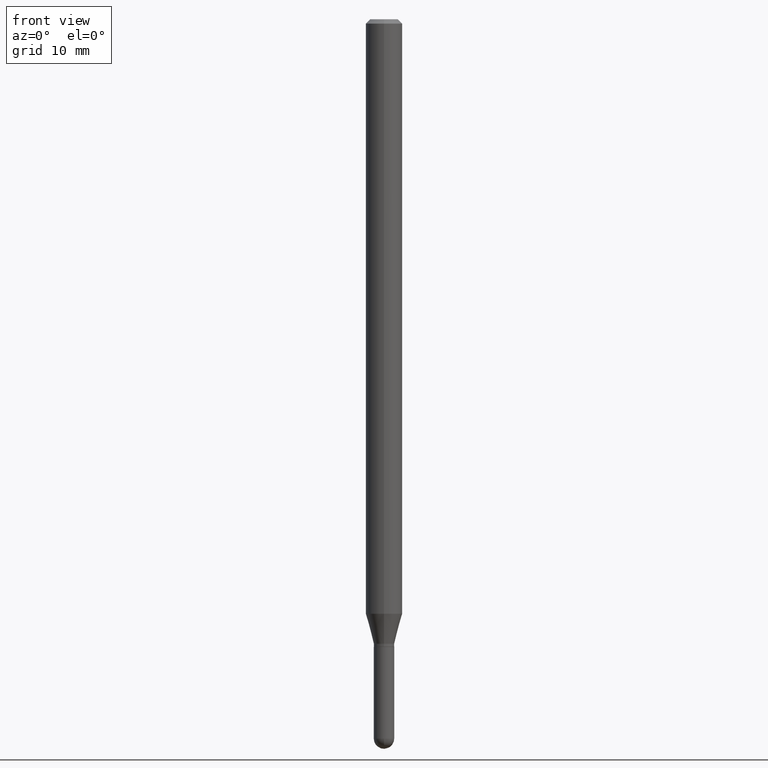
[diagram: clean part render]
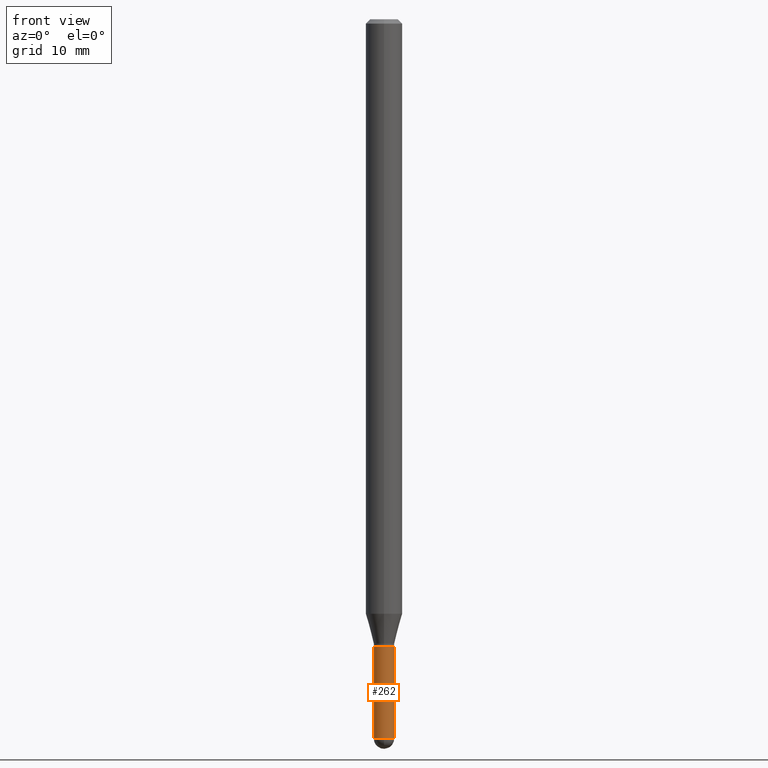
[diagram: same view with one face highlighted and labeled with its STEP entity id]
A machine part, front view. The second image highlights one B-rep face of the part: STEP entity #262.
In plain terms, the highlighted cylindrical surface (edge-blend (fillet) strip) has radius 0.889 mm, axis along (-0, 0, 1).
Its self-contained STEP definition (entity closure, byte-faithful):
#5 = CARTESIAN_POINT ( 'NONE',  ( 6.028080607246362204E-29, -8.606501500248354960E-15, -2.464999999999999858 ) ) ;
#14 = VERTEX_POINT ( 'NONE', #160 ) ;
#30 = LINE ( 'NONE', #185, #233 ) ;
#42 = DIRECTION ( 'NONE',  ( -2.445468806185136597E-29, 3.491481338843145583E-15, 1.000000000000000000 ) ) ;
#46 = LINE ( 'NONE', #403, #100 ) ;
#63 = EDGE_CURVE ( 'NONE', #488, #496, #46, .T. ) ;
#70 = CARTESIAN_POINT ( 'NONE',  ( 6.028080607246362204E-29, -8.606501500248354960E-15, -2.464999999999999858 ) ) ;
#81 = CARTESIAN_POINT ( 'NONE',  ( -0.03500000000000000333, -7.807903231864523961E-15, -2.150000000000000355 ) ) ;
#88 = ORIENTED_EDGE ( 'NONE', *, *, #326, .F. ) ;
#100 = VECTOR ( 'NONE', #212, 39.37007874015748143 ) ;
#111 = DIRECTION ( 'NONE',  ( 1.000000000000000000, -6.982962677686248567E-15, 0.000000000000000000 ) ) ;
#139 = ORIENTED_EDGE ( 'NONE', *, *, #290, .T. ) ;
#144 = DIRECTION ( 'NONE',  ( 1.000000000000000000, -6.982962677686248567E-15, 0.000000000000000000 ) ) ;
#152 = DIRECTION ( 'NONE',  ( -2.445468806185136877E-29, 3.491481338843145188E-15, 1.000000000000000000 ) ) ;
#160 = CARTESIAN_POINT ( 'NONE',  ( 0.03500000000000000333, -8.300996883099578424E-15, -2.464999999999999858 ) ) ;
#172 = CIRCLE ( 'NONE', #395, 0.03500000000000000333 ) ;
#178 = CYLINDRICAL_SURFACE ( 'NONE', #454, 0.03500000000000000333 ) ;
#182 = DIRECTION ( 'NONE',  ( 1.000000000000000000, -6.982962677686276966E-15, 0.000000000000000000 ) ) ;
#183 = EDGE_CURVE ( 'NONE', #488, #207, #172, .T. ) ;
#185 = CARTESIAN_POINT ( 'NONE',  ( 0.03500000000000000333, -2.444036937190193250E-16, 1.706661871528577808E-30 ) ) ;
#207 = VERTEX_POINT ( 'NONE', #420 ) ;
#212 = DIRECTION ( 'NONE',  ( -2.445468806185136877E-29, 3.491481338843145188E-15, 1.000000000000000000 ) ) ;
#227 = DIRECTION ( 'NONE',  ( -2.445468806185136597E-29, 3.491481338843145583E-15, 1.000000000000000000 ) ) ;
#229 = DIRECTION ( 'NONE',  ( 1.000000000000000000, -6.982962677686265922E-15, 4.876176775795936353E-29 ) ) ;
#233 = VECTOR ( 'NONE', #152, 39.37007874015748143 ) ;
#242 = CARTESIAN_POINT ( 'NONE',  ( -0.03500000000000000333, -7.807903231864523961E-15, -2.464999999999999858 ) ) ;
#260 = AXIS2_PLACEMENT_3D ( 'NONE', #70, #227, #111 ) ;
#262 = ADVANCED_FACE ( 'NONE', ( #460 ), #178, .T. ) ;
#275 = EDGE_CURVE ( 'NONE', #14, #366, #30, .T. ) ;
#284 = ORIENTED_EDGE ( 'NONE', *, *, #275, .T. ) ;
#290 = EDGE_CURVE ( 'NONE', #207, #14, #465, .T. ) ;
#300 = AXIS2_PLACEMENT_3D ( 'NONE', #305, #42, #182 ) ;
#305 = CARTESIAN_POINT ( 'NONE',  ( 5.257757933298044131E-29, -7.506684878512763535E-15, -2.150000000000000355 ) ) ;
#313 = DIRECTION ( 'NONE',  ( -2.445468806185136597E-29, 3.491481338843145583E-15, 1.000000000000000000 ) ) ;
#326 = EDGE_CURVE ( 'NONE', #496, #366, #396, .T. ) ;
#329 = ORIENTED_EDGE ( 'NONE', *, *, #63, .F. ) ;
#352 = CARTESIAN_POINT ( 'NONE',  ( 0.03500000000000000333, -7.751088572231783501E-15, -2.150000000000000355 ) ) ;
#366 = VERTEX_POINT ( 'NONE', #352 ) ;
#380 = CARTESIAN_POINT ( 'NONE',  ( 0.000000000000000000, 0.000000000000000000, 0.000000000000000000 ) ) ;
#395 = AXIS2_PLACEMENT_3D ( 'NONE', #5, #313, #144 ) ;
#396 = CIRCLE ( 'NONE', #300, 0.03500000000000000333 ) ;
#403 = CARTESIAN_POINT ( 'NONE',  ( -0.03500000000000000333, 2.486899575160350887E-16, -1.721627281589217108E-30 ) ) ;
#420 = CARTESIAN_POINT ( 'NONE',  ( -2.486899575159738534E-16, -0.03500000000000848266, -2.464999999999999858 ) ) ;
#422 = DIRECTION ( 'NONE',  ( -2.445468806185136597E-29, 3.491481338843145583E-15, 1.000000000000000000 ) ) ;
#435 = ORIENTED_EDGE ( 'NONE', *, *, #183, .T. ) ;
#454 = AXIS2_PLACEMENT_3D ( 'NONE', #380, #422, #229 ) ;
#460 = FACE_OUTER_BOUND ( 'NONE', #484, .T. ) ;
#465 = CIRCLE ( 'NONE', #260, 0.03500000000000000333 ) ;
#484 = EDGE_LOOP ( 'NONE', ( #329, #435, #139, #284, #88 ) ) ;
#488 = VERTEX_POINT ( 'NONE', #242 ) ;
#496 = VERTEX_POINT ( 'NONE', #81 ) ;